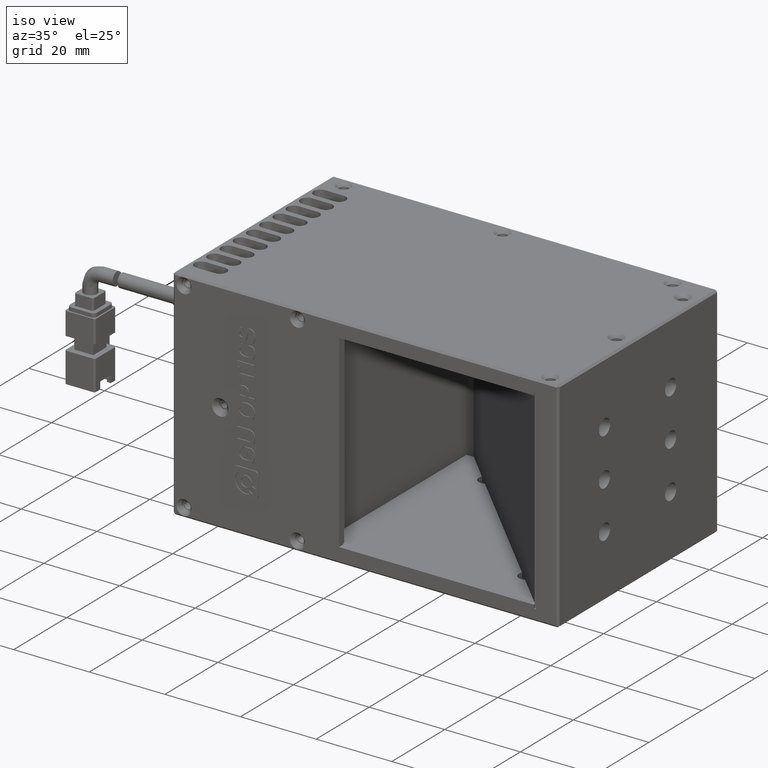
[diagram: clean part render]
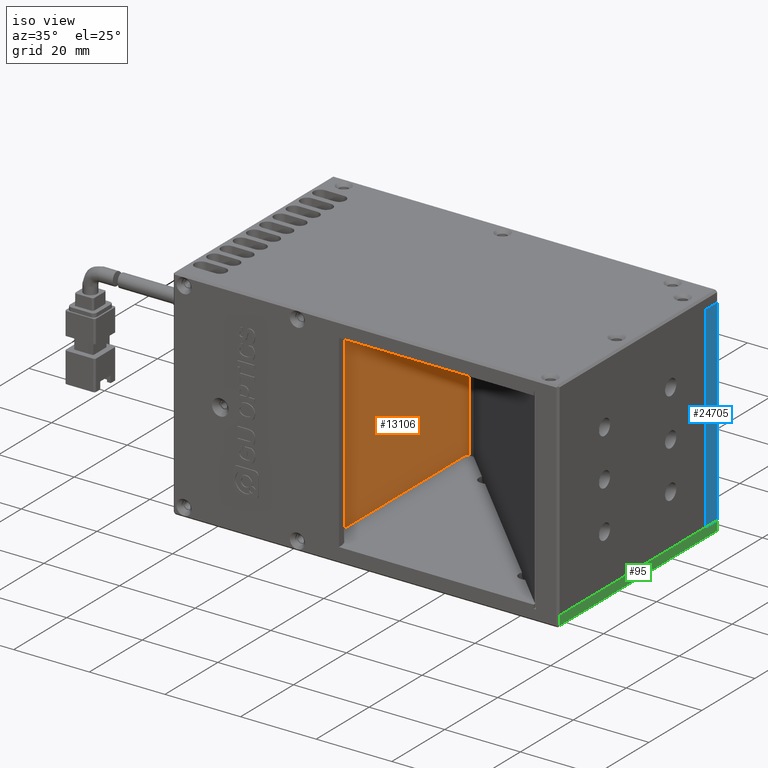
[diagram: same view with three faces highlighted in distinct colors, each labeled with its STEP entity id]
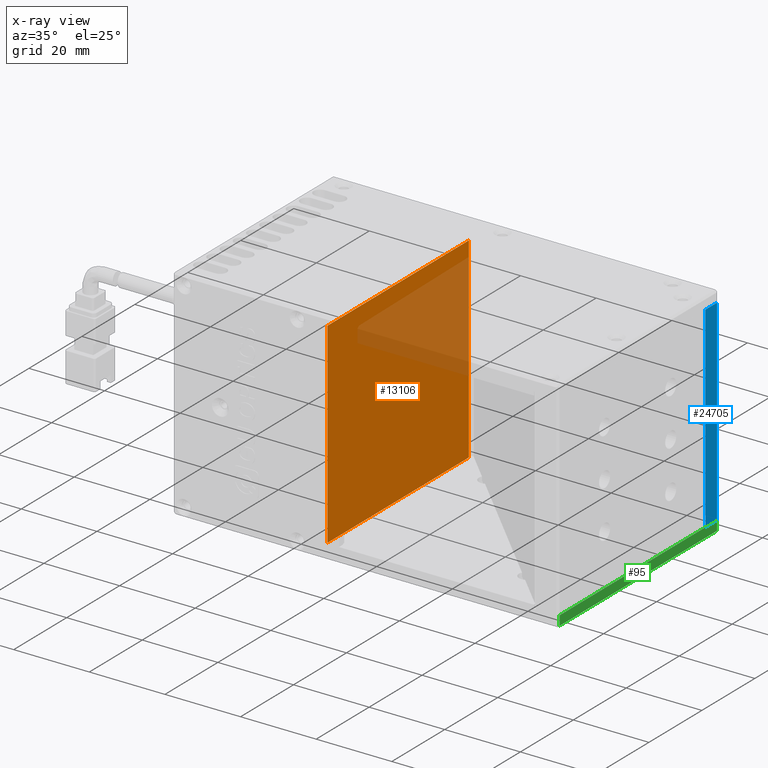
[diagram: x-ray of the same camera — body ghosted, the three highlighted faces saturated]
A machine part, iso view with three faces highlighted in distinct colors.
The next image is the same camera in x-ray (body ghosted, the three faces saturated) — at least one of them is partly hidden behind the body in this view.
Their STEP definitions:

[orange] entity #13106 — the highlighted planar face has unit normal (1, 0, 0).
#391 = FACE_OUTER_BOUND ( 'NONE', #41341, .T. ) ;
#6871 = CARTESIAN_POINT ( 'NONE',  ( -29.07424922391152600, 47.77699333090265600, 3.000000000009550600 ) ) ;
#8836 = VECTOR ( 'NONE', #54888, 1000.000000000000000 ) ;
#11133 = EDGE_CURVE ( 'NONE', #44746, #44757, #44717, .T. ) ;
#13106 = ADVANCED_FACE ( 'NONE', ( #391 ), #57192, .T. ) ;
#15256 = LINE ( 'NONE', #31169, #55885 ) ;
#17611 = CARTESIAN_POINT ( 'NONE',  ( -29.07424922391152600, 47.77699333090266300, 54.90000000000955500 ) ) ;
#18417 = ORIENTED_EDGE ( 'NONE', *, *, #11133, .T. ) ;
#22837 = EDGE_CURVE ( 'NONE', #44757, #64040, #49464, .T. ) ;
#24109 = CARTESIAN_POINT ( 'NONE',  ( -29.07424922391151500, -5.723006669097353300, 3.000000000009550600 ) ) ;
#24444 = EDGE_CURVE ( 'NONE', #64040, #36322, #48223, .T. ) ;
#25623 = DIRECTION ( 'NONE',  ( -4.763367505738566700E-032, 2.182514033342871100E-016, 1.000000000000000000 ) ) ;
#26275 = AXIS2_PLACEMENT_3D ( 'NONE', #30975, #68060, #36372 ) ;
#30539 = VECTOR ( 'NONE', #47599, 1000.000000000000000 ) ;
#30975 = CARTESIAN_POINT ( 'NONE',  ( -29.07424922391151500, -5.723006669097342700, 54.90000000000956200 ) ) ;
#31169 = CARTESIAN_POINT ( 'NONE',  ( -29.07424922391152600, 47.77699333090266300, 54.90000000000954800 ) ) ;
#36322 = VERTEX_POINT ( 'NONE', #6871 ) ;
#36372 = DIRECTION ( 'NONE',  ( 4.763367505738566700E-032, -2.182514033342871100E-016, -1.000000000000000000 ) ) ;
#38916 = CARTESIAN_POINT ( 'NONE',  ( -29.07424922391151500, -5.723006669097342700, 54.90000000000956200 ) ) ;
#40534 = CARTESIAN_POINT ( 'NONE',  ( -29.07424922391151500, -5.723006669097353300, 3.000000000009550600 ) ) ;
#41341 = EDGE_LOOP ( 'NONE', ( #43146, #66196, #18417, #61928 ) ) ;
#43146 = ORIENTED_EDGE ( 'NONE', *, *, #24444, .T. ) ;
#43257 = EDGE_CURVE ( 'NONE', #36322, #44746, #15256, .T. ) ;
#44717 = LINE ( 'NONE', #68645, #30539 ) ;
#44746 = VERTEX_POINT ( 'NONE', #17611 ) ;
#44757 = VERTEX_POINT ( 'NONE', #49381 ) ;
#47599 = DIRECTION ( 'NONE',  ( 2.182514033342871100E-016, -1.000000000000000000, 2.182514033342871100E-016 ) ) ;
#48223 = LINE ( 'NONE', #24109, #60623 ) ;
#49381 = CARTESIAN_POINT ( 'NONE',  ( -29.07424922391151500, -5.723006669097342700, 54.90000000000956200 ) ) ;
#49464 = LINE ( 'NONE', #38916, #8836 ) ;
#54888 = DIRECTION ( 'NONE',  ( 4.763367505738566700E-032, -2.182514033342871100E-016, -1.000000000000000000 ) ) ;
#55854 = DIRECTION ( 'NONE',  ( -2.182514033342871100E-016, 1.000000000000000000, -2.182514033342871100E-016 ) ) ;
#55885 = VECTOR ( 'NONE', #25623, 1000.000000000000000 ) ;
#57192 = PLANE ( 'NONE',  #26275 ) ;
#60623 = VECTOR ( 'NONE', #55854, 1000.000000000000000 ) ;
#61928 = ORIENTED_EDGE ( 'NONE', *, *, #22837, .T. ) ;
#64040 = VERTEX_POINT ( 'NONE', #40534 ) ;
#66196 = ORIENTED_EDGE ( 'NONE', *, *, #43257, .T. ) ;
#68060 = DIRECTION ( 'NONE',  ( 1.000000000000000000, 2.182514033342871100E-016, 0.0000000000000000000 ) ) ;
#68645 = CARTESIAN_POINT ( 'NONE',  ( -29.07424922391151500, -5.723006669097342700, 54.90000000000957000 ) ) ;

[blue] entity #24705 — the highlighted planar face has unit normal (-1, -0, -0).
#591 = LINE ( 'NONE', #50133, #14673 ) ;
#3379 = AXIS2_PLACEMENT_3D ( 'NONE', #11093, #48200, #16401 ) ;
#5470 = CARTESIAN_POINT ( 'NONE',  ( 33.42575077608847800, 47.77699333090263400, 55.00000000000955700 ) ) ;
#5588 = VERTEX_POINT ( 'NONE', #61426 ) ;
#11093 = CARTESIAN_POINT ( 'NONE',  ( 33.42575077608847800, 52.77699333090263400, 55.00000000000955700 ) ) ;
#13048 = ORIENTED_EDGE ( 'NONE', *, *, #25527, .F. ) ;
#13055 = DIRECTION ( 'NONE',  ( 3.435095992033281500E-016, 8.934926561080616200E-032, -1.000000000000000000 ) ) ;
#13266 = ORIENTED_EDGE ( 'NONE', *, *, #61350, .F. ) ;
#14642 = VECTOR ( 'NONE', #67638, 1000.000000000000000 ) ;
#14673 = VECTOR ( 'NONE', #13055, 1000.000000000000000 ) ;
#15827 = DIRECTION ( 'NONE',  ( 3.435095992033281500E-016, -1.000000000000000000, 2.465190328815661900E-032 ) ) ;
#16401 = DIRECTION ( 'NONE',  ( -3.435095992033281500E-016, -9.334694145667452600E-032, 1.000000000000000000 ) ) ;
#21355 = ORIENTED_EDGE ( 'NONE', *, *, #47888, .T. ) ;
#21536 = PLANE ( 'NONE',  #3379 ) ;
#24705 = ADVANCED_FACE ( 'NONE', ( #34844 ), #21536, .F. ) ;
#25527 = EDGE_CURVE ( 'NONE', #35408, #39147, #591, .T. ) ;
#28026 = VERTEX_POINT ( 'NONE', #5470 ) ;
#28731 = LINE ( 'NONE', #41056, #14642 ) ;
#31847 = EDGE_CURVE ( 'NONE', #5588, #39147, #28731, .T. ) ;
#32475 = DIRECTION ( 'NONE',  ( -3.435095992033281500E-016, -9.334694145667452600E-032, 1.000000000000000000 ) ) ;
#34844 = FACE_OUTER_BOUND ( 'NONE', #67683, .T. ) ;
#34850 = LINE ( 'NONE', #58888, #47283 ) ;
#35408 = VERTEX_POINT ( 'NONE', #46593 ) ;
#39147 = VERTEX_POINT ( 'NONE', #66072 ) ;
#40657 = VECTOR ( 'NONE', #15827, 1000.000000000000000 ) ;
#41056 = CARTESIAN_POINT ( 'NONE',  ( 33.42575077608849200, 52.77699333090263400, 3.000000000009543500 ) ) ;
#42306 = CARTESIAN_POINT ( 'NONE',  ( 33.42575077608847800, 52.77699333090263400, 55.00000000000955700 ) ) ;
#46593 = CARTESIAN_POINT ( 'NONE',  ( 33.42575077608847800, 52.27699333090263400, 55.00000000000955700 ) ) ;
#47283 = VECTOR ( 'NONE', #32475, 1000.000000000000000 ) ;
#47888 = EDGE_CURVE ( 'NONE', #35408, #28026, #54705, .T. ) ;
#48200 = DIRECTION ( 'NONE',  ( -1.000000000000000000, -3.435095992033281500E-016, -3.435095992033281500E-016 ) ) ;
#49821 = ORIENTED_EDGE ( 'NONE', *, *, #31847, .T. ) ;
#50133 = CARTESIAN_POINT ( 'NONE',  ( 33.42575077608849200, 52.27699333090263400, 3.000000000009543500 ) ) ;
#54705 = LINE ( 'NONE', #42306, #40657 ) ;
#58888 = CARTESIAN_POINT ( 'NONE',  ( 33.42575077608847800, 47.77699333090263400, 55.00000000000955700 ) ) ;
#61350 = EDGE_CURVE ( 'NONE', #5588, #28026, #34850, .T. ) ;
#61426 = CARTESIAN_POINT ( 'NONE',  ( 33.42575077608849900, 47.77699333090263400, 3.000000000009543500 ) ) ;
#66072 = CARTESIAN_POINT ( 'NONE',  ( 33.42575077608849200, 52.27699333090263400, 3.000000000009543500 ) ) ;
#67638 = DIRECTION ( 'NONE',  ( -3.435095992033281500E-016, 1.000000000000000000, -2.465190328815661900E-032 ) ) ;
#67683 = EDGE_LOOP ( 'NONE', ( #13266, #49821, #13048, #21355 ) ) ;

[green] entity #95 — the highlighted planar face has unit normal (-1, 0, 0).
#95 = ADVANCED_FACE ( 'NONE', ( #390 ), #20920, .F. ) ;
#390 = FACE_OUTER_BOUND ( 'NONE', #21314, .T. ) ;
#533 = VECTOR ( 'NONE', #63572, 1000.000000000000000 ) ;
#2595 = EDGE_CURVE ( 'NONE', #16926, #57423, #12956, .T. ) ;
#4279 = EDGE_CURVE ( 'NONE', #32047, #61922, #31468, .T. ) ;
#12956 = LINE ( 'NONE', #21657, #533 ) ;
#13981 = CARTESIAN_POINT ( 'NONE',  ( 33.42575077608847800, 52.27699333090263400, 3.000000000009549700 ) ) ;
#15804 = DIRECTION ( 'NONE',  ( -1.000000000000000000, 0.0000000000000000000, 0.0000000000000000000 ) ) ;
#16884 = CARTESIAN_POINT ( 'NONE',  ( 33.42575077608847800, -7.223006669097347100, 0.5000000000095505800 ) ) ;
#16926 = VERTEX_POINT ( 'NONE', #16884 ) ;
#18028 = DIRECTION ( 'NONE',  ( -0.0000000000000000000, -0.0000000000000000000, -1.000000000000000000 ) ) ;
#18743 = AXIS2_PLACEMENT_3D ( 'NONE', #47579, #15804, #52905 ) ;
#18830 = CARTESIAN_POINT ( 'NONE',  ( 33.42575077608847800, -7.723006669097348000, 3.000000000009549700 ) ) ;
#19218 = ORIENTED_EDGE ( 'NONE', *, *, #4279, .F. ) ;
#20887 = LINE ( 'NONE', #62206, #47447 ) ;
#20920 = PLANE ( 'NONE',  #18743 ) ;
#21314 = EDGE_LOOP ( 'NONE', ( #51830, #29193, #19218, #22601 ) ) ;
#21657 = CARTESIAN_POINT ( 'NONE',  ( 33.42575077608847800, -7.223006669097347100, 4.000000000009549700 ) ) ;
#22601 = ORIENTED_EDGE ( 'NONE', *, *, #33631, .F. ) ;
#24425 = VECTOR ( 'NONE', #45302, 1000.000000000000000 ) ;
#29193 = ORIENTED_EDGE ( 'NONE', *, *, #57894, .T. ) ;
#31468 = LINE ( 'NONE', #60669, #58025 ) ;
#32047 = VERTEX_POINT ( 'NONE', #13981 ) ;
#33631 = EDGE_CURVE ( 'NONE', #57423, #32047, #54270, .T. ) ;
#40716 = CARTESIAN_POINT ( 'NONE',  ( 33.42575077608847800, -7.223006669097347100, 3.000000000009549700 ) ) ;
#44036 = CARTESIAN_POINT ( 'NONE',  ( 33.42575077608847800, 52.27699333090263400, 0.5000000000095501400 ) ) ;
#45302 = DIRECTION ( 'NONE',  ( 0.0000000000000000000, 1.000000000000000000, -0.0000000000000000000 ) ) ;
#47447 = VECTOR ( 'NONE', #56831, 1000.000000000000000 ) ;
#47579 = CARTESIAN_POINT ( 'NONE',  ( 33.42575077608847800, -7.723006669097348000, 4.000000000009549700 ) ) ;
#51830 = ORIENTED_EDGE ( 'NONE', *, *, #2595, .F. ) ;
#52905 = DIRECTION ( 'NONE',  ( 0.0000000000000000000, 0.0000000000000000000, 1.000000000000000000 ) ) ;
#54270 = LINE ( 'NONE', #18830, #24425 ) ;
#56831 = DIRECTION ( 'NONE',  ( 0.0000000000000000000, 1.000000000000000000, -0.0000000000000000000 ) ) ;
#57423 = VERTEX_POINT ( 'NONE', #40716 ) ;
#57894 = EDGE_CURVE ( 'NONE', #16926, #61922, #20887, .T. ) ;
#58025 = VECTOR ( 'NONE', #18028, 1000.000000000000000 ) ;
#60669 = CARTESIAN_POINT ( 'NONE',  ( 33.42575077608847800, 52.27699333090263400, 4.000000000009549700 ) ) ;
#61922 = VERTEX_POINT ( 'NONE', #44036 ) ;
#62206 = CARTESIAN_POINT ( 'NONE',  ( 33.42575077608847800, -7.723006669097348000, 0.5000000000095501400 ) ) ;
#63572 = DIRECTION ( 'NONE',  ( 0.0000000000000000000, 0.0000000000000000000, 1.000000000000000000 ) ) ;